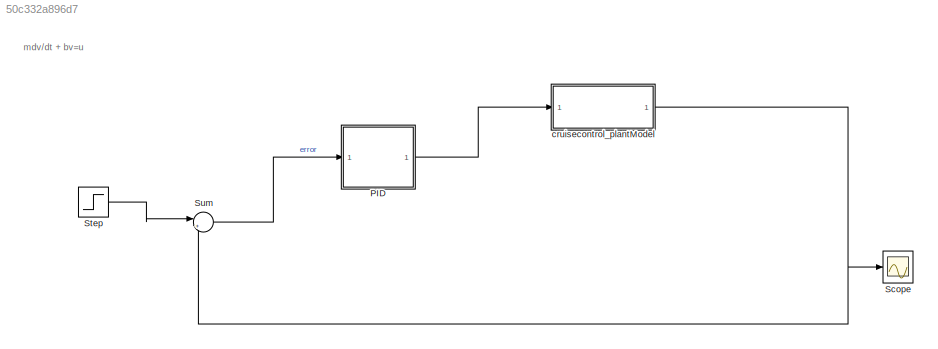
MODEL slx_50c332a896d7
KIND model
CONFIG AbsTol = auto
CONFIG EnableMultiTasking = off
CONFIG FixedStep = auto
CONFIG MaxStep = auto
CONFIG MinStep = auto
CONFIG PreLoadFcn = clear all;\nclose all;\nclc;\nm=1000;\nb=50;\nu=500;
CONFIG RelTol = 1e-3
CONFIG SampleTimeConstraint = Unconstrained
CONFIG SolverName = VariableStepAuto
CONFIG StartTime = 0.0
CONFIG StopTime = 120.0
BLOCK [ModelReference] PID 
  ModelNameDialog = PID_controller
  ModelReferenceVersion = 1.18
  Ports = [1, 1]
BLOCK [Scope] Scope
  Floating = off
  NumInputPorts = 1
  Ports = [1]
  ScopeSpecificationString = Simulink.scopes.TimeScopeBlockCfg('CurrentConfiguration', extmgr.ConfigurationSet(extmgr.Configuration('Core','General UI',true),extmgr.Configuration('Core','Source UI',true),extmgr.Configuration('Sources','WiredSimulink',true),extmgr.Configuration('Visuals','Time Domain',true,'SerializedDisplays',{struct('MinYLimReal','-68.0446','MaxYLimReal','612.40142','YLabelReal','','MinYLimMag','0.00000','Ma...<+1352ch>
BLOCK [Step] Step
  After = u
  SampleTime = 0
  Time = 0
BLOCK [Sum] Sum
  Inputs = |+-
  Ports = [2, 1]
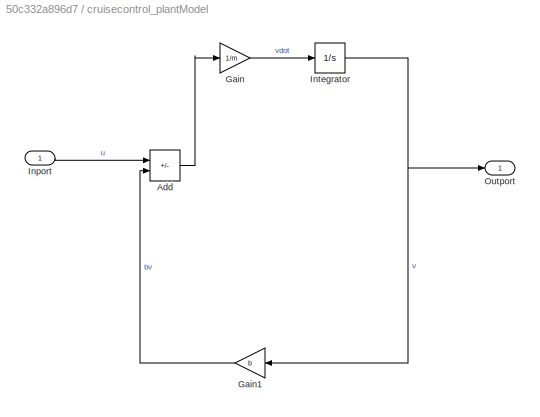
BLOCK [SubSystem] cruisecontrol_plantModel
  Ports = [1, 1]
  RequestExecContextInheritance = off
BLOCK [Sum] cruisecontrol_plantModel/Add
  IconShape = rectangular
  Inputs = +-
  Ports = [2, 1]
BLOCK [Gain] cruisecontrol_plantModel/Gain
  Gain = 1/m
BLOCK [Gain] cruisecontrol_plantModel/Gain1
  Gain = b
BLOCK [Inport] cruisecontrol_plantModel/Inport
BLOCK [Integrator] cruisecontrol_plantModel/Integrator
  Ports = [1, 1]
BLOCK [Outport] cruisecontrol_plantModel/Outport
ANNOTATION (root): mdv/dt + bv=u
LINE PID :1 -> cruisecontrol_plantModel:1
LINE Step:1 -> Sum:1
LINE Sum:1 -> PID :1
LINE cruisecontrol_plantModel/Add:1 -> cruisecontrol_plantModel/Gain:1
LINE cruisecontrol_plantModel/Gain1:1 -> cruisecontrol_plantModel/Add:2
LINE cruisecontrol_plantModel/Gain:1 -> cruisecontrol_plantModel/Integrator:1
LINE cruisecontrol_plantModel/Inport:1 -> cruisecontrol_plantModel/Add:1
NET cruisecontrol_plantModel/Integrator:1 -> cruisecontrol_plantModel/Gain1:1, cruisecontrol_plantModel/Outport:1
NET cruisecontrol_plantModel:1 -> Scope:1, Sum:2
note: NET lines group one-source signal fan-out (src -> all destinations, sorted); 1:1 wires keep LINE
